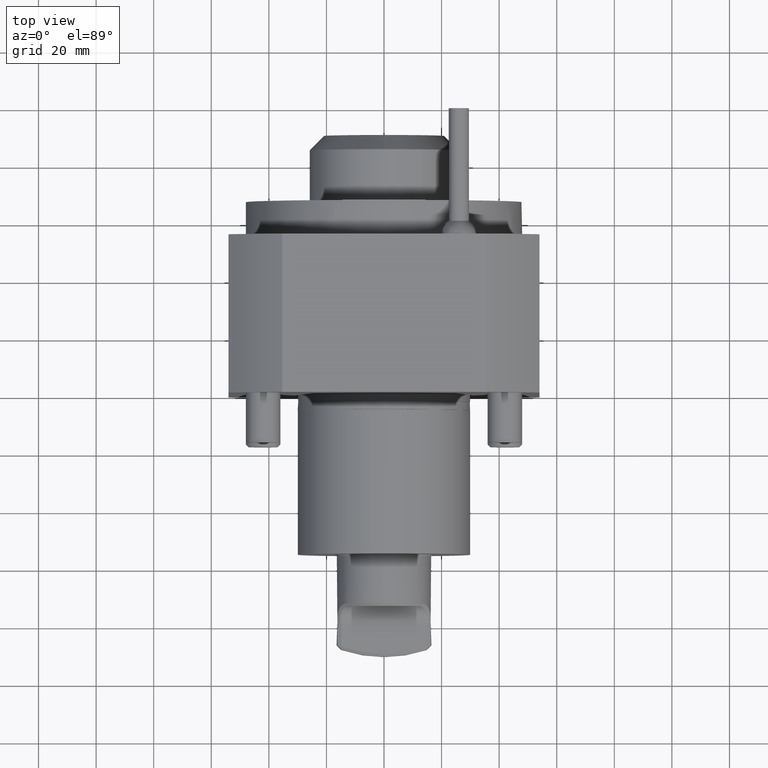
[diagram: clean part render]
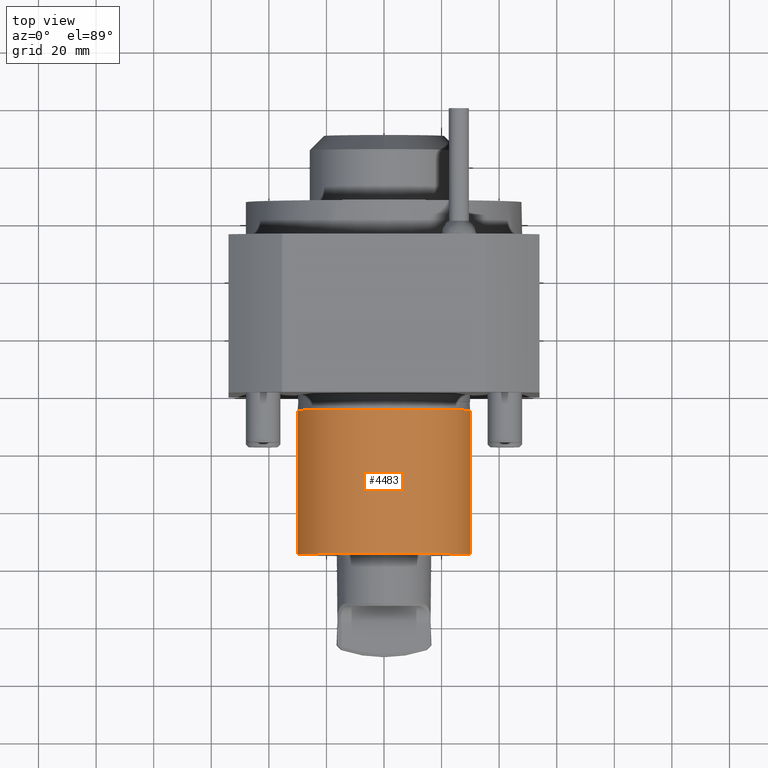
[diagram: same view with one face highlighted and labeled with its STEP entity id]
A machine part, top view. The second image highlights one B-rep face of the part: STEP entity #4483.
In plain terms, the highlighted cylindrical surface (bore or boss wall) has radius 29.9 mm, axis along (-0, -1, -0).
Its self-contained STEP definition (entity closure, byte-faithful):
#382 = DIRECTION ( 'NONE',  ( -1.000000000000000000, 1.160350151155055003E-16, 0.000000000000000000 ) ) ;
#504 = AXIS2_PLACEMENT_3D ( 'NONE', #13688, #2729, #16982 ) ;
#860 = EDGE_CURVE ( 'NONE', #3814, #3814, #17647, .T. ) ;
#1394 = CARTESIAN_POINT ( 'NONE',  ( -8.044299173181774548E-15, -55.50000000000002842, 1.084911242935065551E-15 ) ) ;
#2729 = DIRECTION ( 'NONE',  ( -1.224646799147353207E-16, -1.000000000000000000, -0.000000000000000000 ) ) ;
#3504 = CARTESIAN_POINT ( 'NONE',  ( -6.613092715395582235E-16, -5.399999999999907985, 0.000000000000000000 ) ) ;
#3814 = VERTEX_POINT ( 'NONE', #5179 ) ;
#4112 = AXIS2_PLACEMENT_3D ( 'NONE', #3504, #19245, #382 ) ;
#4229 = VERTEX_POINT ( 'NONE', #10462 ) ;
#4483 = ADVANCED_FACE ( 'Defeature completata1_20', ( #8969, #11903 ), #16579, .T. ) ;
#5179 = CARTESIAN_POINT ( 'NONE',  ( 29.89999999999999147, -55.50000000000003553, 1.084911242935065551E-15 ) ) ;
#6189 = DIRECTION ( 'NONE',  ( -2.148727864268810251E-16, -1.000000000000000000, 8.036379577296823765E-17 ) ) ;
#7278 = ORIENTED_EDGE ( 'NONE', *, *, #16063, .T. ) ;
#8969 = FACE_OUTER_BOUND ( 'NONE', #11339, .T. ) ;
#9141 = ORIENTED_EDGE ( 'NONE', *, *, #860, .F. ) ;
#10048 = EDGE_LOOP ( 'NONE', ( #7278 ) ) ;
#10462 = CARTESIAN_POINT ( 'NONE',  ( -29.89999999999999858, -5.399999999999904432, 0.000000000000000000 ) ) ;
#11339 = EDGE_LOOP ( 'NONE', ( #9141 ) ) ;
#11903 = FACE_OUTER_BOUND ( 'NONE', #10048, .T. ) ;
#13688 = CARTESIAN_POINT ( 'NONE',  ( -5.265981236333602693E-15, -42.99999999999987921, 0.000000000000000000 ) ) ;
#14115 = CIRCLE ( 'NONE', #4112, 29.89999999999999858 ) ;
#15658 = AXIS2_PLACEMENT_3D ( 'NONE', #1394, #6189, #15855 ) ;
#15855 = DIRECTION ( 'NONE',  ( 1.000000000000000000, -2.320700302310110005E-16, 0.000000000000000000 ) ) ;
#16063 = EDGE_CURVE ( 'NONE', #4229, #4229, #14115, .T. ) ;
#16579 = CYLINDRICAL_SURFACE ( 'NONE', #504, 29.89999999999999858 ) ;
#16982 = DIRECTION ( 'NONE',  ( 0.000000000000000000, 0.000000000000000000, 1.000000000000000000 ) ) ;
#17647 = CIRCLE ( 'NONE', #15658, 29.89999999999999858 ) ;
#19245 = DIRECTION ( 'NONE',  ( -1.224646799147353207E-16, -1.000000000000000000, -0.000000000000000000 ) ) ;